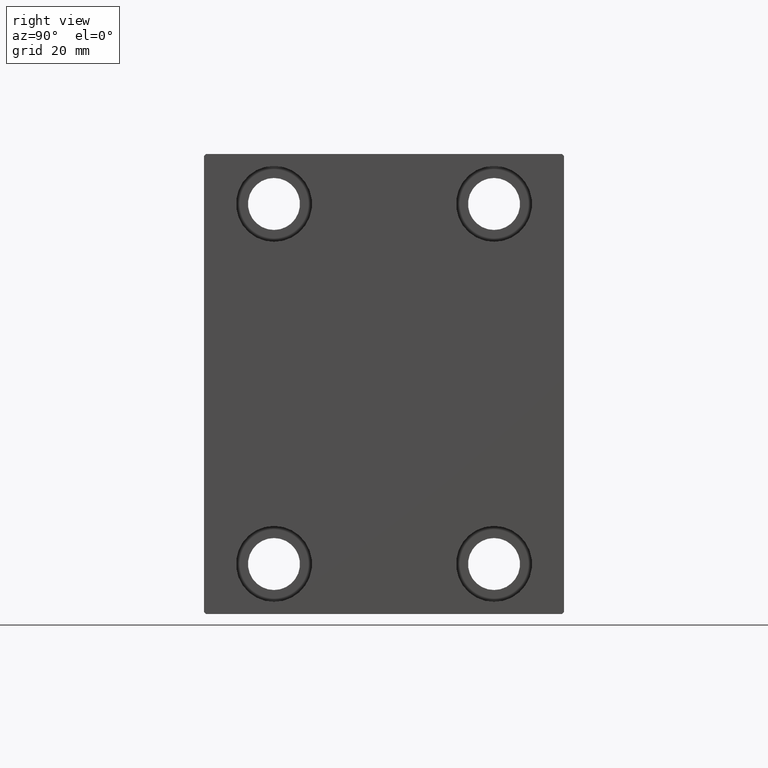
[diagram: clean part render]
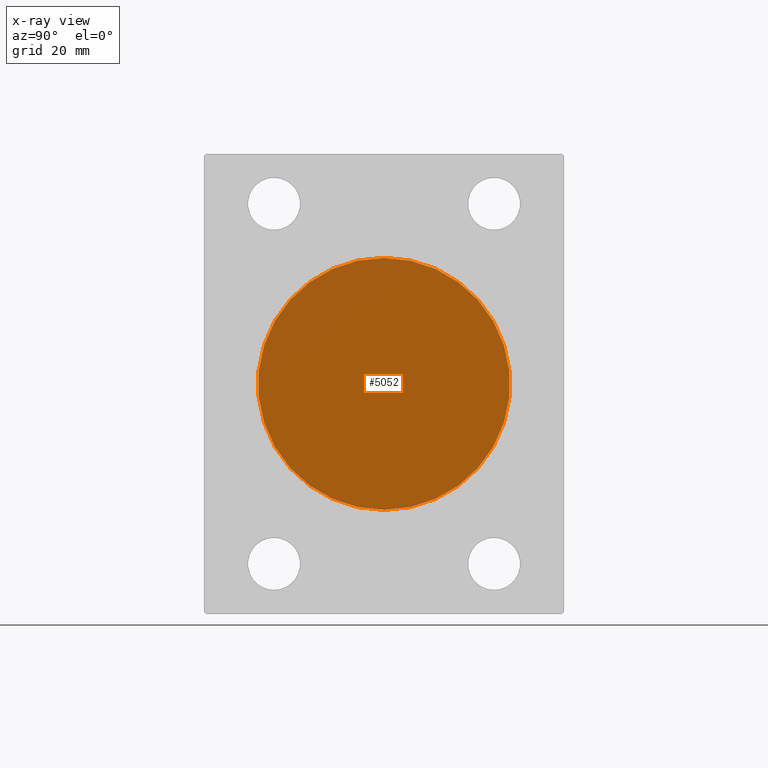
[diagram: x-ray — body ghosted, one internal face saturated and labeled with its STEP entity id]
A machine part, right view, then the same camera in x-ray: the body is ghosted and one INTERNAL B-rep face — a face not visible from any outside direction — is saturated and labeled: STEP entity #5052.
In plain terms, the highlighted planar face has unit normal (-1, 0, 0).
Its self-contained STEP definition (entity closure, byte-faithful):
#1040 = CIRCLE ( 'NONE', #31483, 31.50000000000000000 ) ;
#2979 = DIRECTION ( 'NONE',  ( 0.000000000000000000, 0.000000000000000000, 1.000000000000000000 ) ) ;
#5052 = ADVANCED_FACE ( 'NONE', ( #5164 ), #22003, .T. ) ;
#5164 = FACE_OUTER_BOUND ( 'NONE', #18961, .T. ) ;
#6310 = CARTESIAN_POINT ( 'NONE',  ( 51.00000000000000000, 0.000000000000000000, 0.000000000000000000 ) ) ;
#11416 = DIRECTION ( 'NONE',  ( 0.000000000000000000, 0.000000000000000000, 1.000000000000000000 ) ) ;
#12151 = AXIS2_PLACEMENT_3D ( 'NONE', #26207, #42582, #31967 ) ;
#15308 = VERTEX_POINT ( 'NONE', #31349 ) ;
#18961 = EDGE_LOOP ( 'NONE', ( #22430, #40447 ) ) ;
#22003 = PLANE ( 'NONE',  #12151 ) ;
#22430 = ORIENTED_EDGE ( 'NONE', *, *, #38598, .T. ) ;
#25587 = CARTESIAN_POINT ( 'NONE',  ( 51.00000000000000000, 3.857637417314162689E-15, -31.50000000000000000 ) ) ;
#26207 = CARTESIAN_POINT ( 'NONE',  ( 51.00000000000000000, 0.000000000000000000, 0.000000000000000000 ) ) ;
#31349 = CARTESIAN_POINT ( 'NONE',  ( 51.00000000000000000, 0.000000000000000000, 31.50000000000000000 ) ) ;
#31483 = AXIS2_PLACEMENT_3D ( 'NONE', #6310, #32469, #2979 ) ;
#31637 = EDGE_CURVE ( 'NONE', #43626, #15308, #1040, .T. ) ;
#31967 = DIRECTION ( 'NONE',  ( 0.000000000000000000, 0.000000000000000000, 1.000000000000000000 ) ) ;
#32469 = DIRECTION ( 'NONE',  ( -1.000000000000000000, 0.000000000000000000, 0.000000000000000000 ) ) ;
#33004 = AXIS2_PLACEMENT_3D ( 'NONE', #34893, #41740, #11416 ) ;
#33715 = CIRCLE ( 'NONE', #33004, 31.50000000000000000 ) ;
#34893 = CARTESIAN_POINT ( 'NONE',  ( 51.00000000000000000, 0.000000000000000000, 0.000000000000000000 ) ) ;
#38598 = EDGE_CURVE ( 'NONE', #15308, #43626, #33715, .T. ) ;
#40447 = ORIENTED_EDGE ( 'NONE', *, *, #31637, .T. ) ;
#41740 = DIRECTION ( 'NONE',  ( -1.000000000000000000, 0.000000000000000000, 0.000000000000000000 ) ) ;
#42582 = DIRECTION ( 'NONE',  ( -1.000000000000000000, 0.000000000000000000, 0.000000000000000000 ) ) ;
#43626 = VERTEX_POINT ( 'NONE', #25587 ) ;